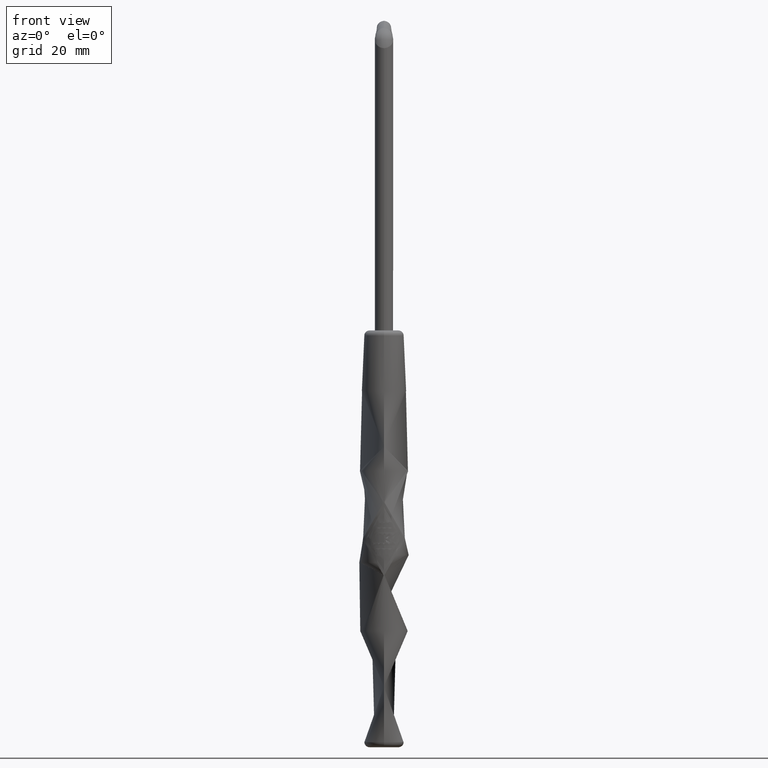
[diagram: clean part render]
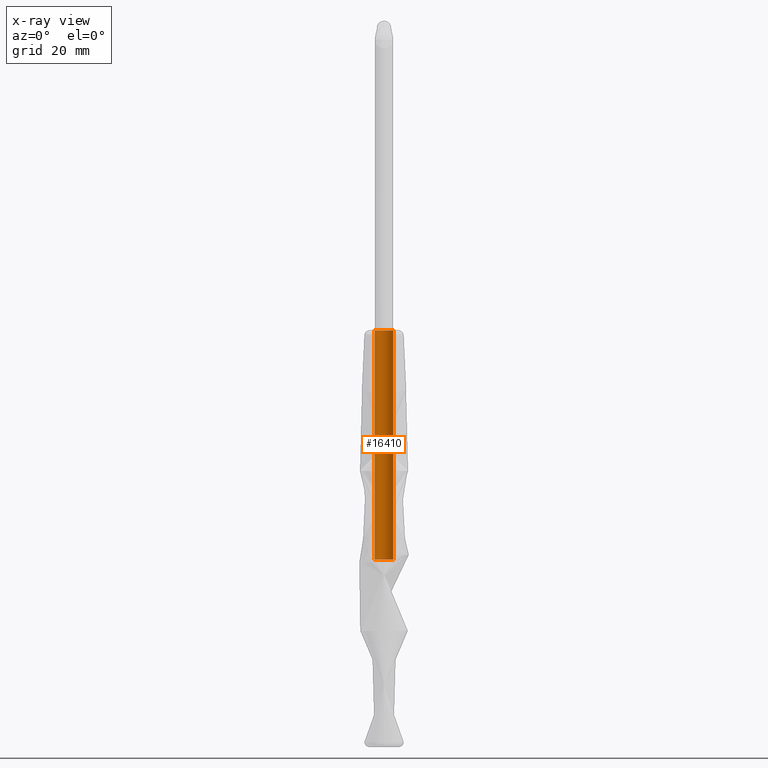
[diagram: x-ray — body ghosted, one internal face saturated and labeled with its STEP entity id]
A machine part, front view, then the same camera in x-ray: the body is ghosted and one INTERNAL B-rep face — a face not visible from any outside direction — is saturated and labeled: STEP entity #16410.
In plain terms, the highlighted cylindrical surface (edge-blend (fillet) strip) has radius 1.8 mm, axis along (-0, 0, 1).
Its self-contained STEP definition (entity closure, byte-faithful):
#340=CARTESIAN_POINT('',(32.788637,114.370263,0.));
#350=DIRECTION('',(0.,1.,0.));
#360=DIRECTION('',(0.,0.,-1.));
#370=AXIS2_PLACEMENT_3D('',#340,#350,#360);
#380=CIRCLE('',#370,1.8);
#390=CARTESIAN_POINT('',(32.788637,114.370263,-1.8));
#400=VERTEX_POINT('',#390);
#410=CARTESIAN_POINT('',(32.788637,114.370263,1.8));
#420=VERTEX_POINT('',#410);
#450=EDGE_CURVE('',#420,#400,#380,.T.);
#15820=CARTESIAN_POINT('',(32.788637,70.370263,0.));
#15830=DIRECTION('',(0.,1.,0.));
#15840=DIRECTION('',(0.,0.,-1.));
#15850=AXIS2_PLACEMENT_3D('',#15820,#15830,#15840);
#15860=CIRCLE('',#15850,1.8);
#15870=CARTESIAN_POINT('',(32.788637,70.370263,-1.8));
#15880=VERTEX_POINT('',#15870);
#15890=CARTESIAN_POINT('',(32.788637,70.370263,1.8));
#15900=VERTEX_POINT('',#15890);
#15930=EDGE_CURVE('',#15900,#15880,#15860,.T.);
#16200=CARTESIAN_POINT('',(32.788637,114.370263,0.));
#16210=DIRECTION('',(0.,1.,0.));
#16220=DIRECTION('',(0.,0.,-1.));
#16230=AXIS2_PLACEMENT_3D('',#16200,#16210,#16220);
#16240=CYLINDRICAL_SURFACE('',#16230,1.8);
#16250=CARTESIAN_POINT('',(32.788637,114.370263,-1.8));
#16260=DIRECTION('',(0.,1.,0.));
#16270=VECTOR('',#16260,1.);
#16280=LINE('',#16250,#16270);
#16290=EDGE_CURVE('',#15880,#400,#16280,.T.);
#16300=ORIENTED_EDGE('',*,*,#16290,.F.);
#16310=ORIENTED_EDGE('',*,*,#450,.T.);
#16320=CARTESIAN_POINT('',(32.788637,114.370263,1.8));
#16330=DIRECTION('',(0.,1.,0.));
#16340=VECTOR('',#16330,1.);
#16350=LINE('',#16320,#16340);
#16360=EDGE_CURVE('',#15900,#420,#16350,.T.);
#16370=ORIENTED_EDGE('',*,*,#16360,.T.);
#16380=ORIENTED_EDGE('',*,*,#15930,.F.);
#16390=EDGE_LOOP('',(#16380,#16370,#16310,#16300));
#16400=FACE_OUTER_BOUND('',#16390,.T.);
#16410=ADVANCED_FACE('',(#16400),#16240,.F.);